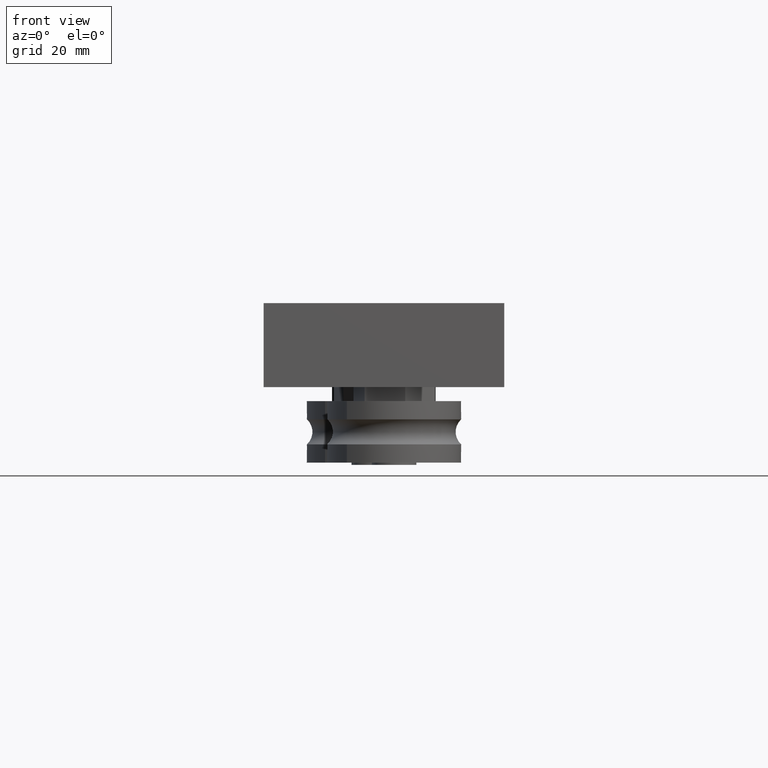
[diagram: clean part render]
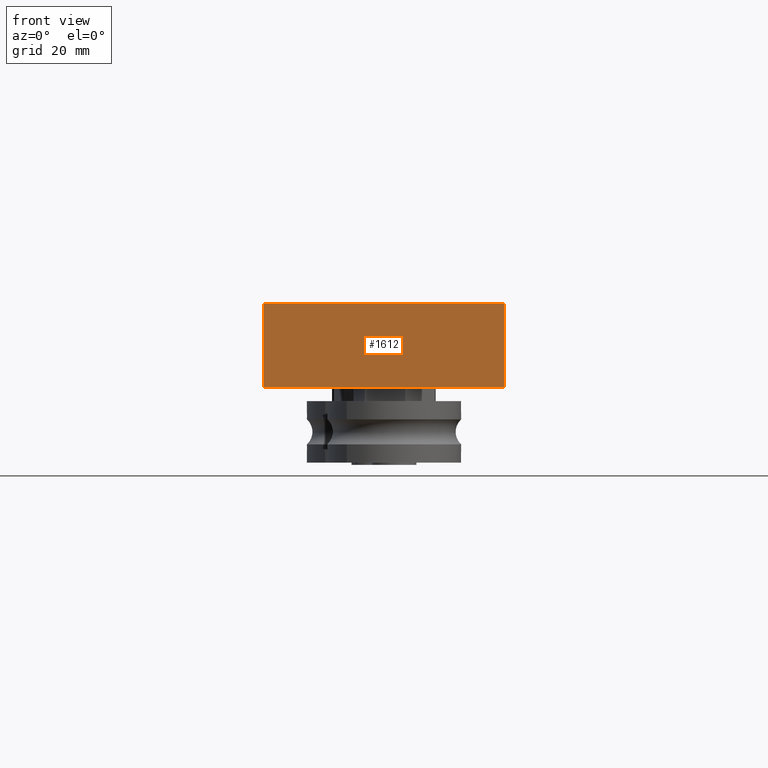
[diagram: same view with one face highlighted and labeled with its STEP entity id]
A machine part, front view. The second image highlights one B-rep face of the part: STEP entity #1612.
In plain terms, the highlighted planar face has unit normal (-0, -1, 0).
Its self-contained STEP definition (entity closure, byte-faithful):
#142=LINE('',#2775,#248);
#146=LINE('',#2783,#252);
#152=LINE('',#2794,#258);
#153=LINE('',#2796,#259);
#248=VECTOR('',#2240,10.);
#252=VECTOR('',#2246,10.);
#258=VECTOR('',#2256,10.);
#259=VECTOR('',#2259,10.);
#450=FACE_OUTER_BOUND('',#567,.T.);
#567=EDGE_LOOP('',(#1213,#1214,#1215,#1216));
#804=VERTEX_POINT('',#2773);
#805=VERTEX_POINT('',#2774);
#808=VERTEX_POINT('',#2782);
#811=VERTEX_POINT('',#2792);
#958=EDGE_CURVE('',#804,#805,#142,.T.);
#962=EDGE_CURVE('',#808,#805,#146,.T.);
#968=EDGE_CURVE('',#804,#811,#152,.T.);
#969=EDGE_CURVE('',#808,#811,#153,.T.);
#1213=ORIENTED_EDGE('',*,*,#968,.T.);
#1214=ORIENTED_EDGE('',*,*,#969,.F.);
#1215=ORIENTED_EDGE('',*,*,#962,.T.);
#1216=ORIENTED_EDGE('',*,*,#958,.F.);
#1545=PLANE('',#1956);
#1612=ADVANCED_FACE('',(#450),#1545,.T.);
#1956=AXIS2_PLACEMENT_3D('',#2795,#2257,#2258);
#2240=DIRECTION('',(1.,0.,4.13106241720988E-16));
#2246=DIRECTION('',(0.,-1.,0.));
#2256=DIRECTION('',(0.,1.,0.));
#2257=DIRECTION('center_axis',(4.13106241720988E-16,0.,-1.));
#2258=DIRECTION('ref_axis',(-1.,0.,-4.13106241720988E-16));
#2259=DIRECTION('',(-1.,0.,-4.13106241720988E-16));
#2773=CARTESIAN_POINT('',(-21.5,-7.5,-60.));
#2774=CARTESIAN_POINT('',(21.5,-7.5,-60.));
#2775=CARTESIAN_POINT('',(21.5,-7.5,-60.));
#2782=CARTESIAN_POINT('',(21.5,7.5,-60.));
#2783=CARTESIAN_POINT('',(21.5,0.,-60.));
#2792=CARTESIAN_POINT('',(-21.5,7.5,-60.));
#2794=CARTESIAN_POINT('',(-21.5,0.,-60.));
#2795=CARTESIAN_POINT('Origin',(21.5,0.,-60.));
#2796=CARTESIAN_POINT('',(21.5,7.5,-60.));